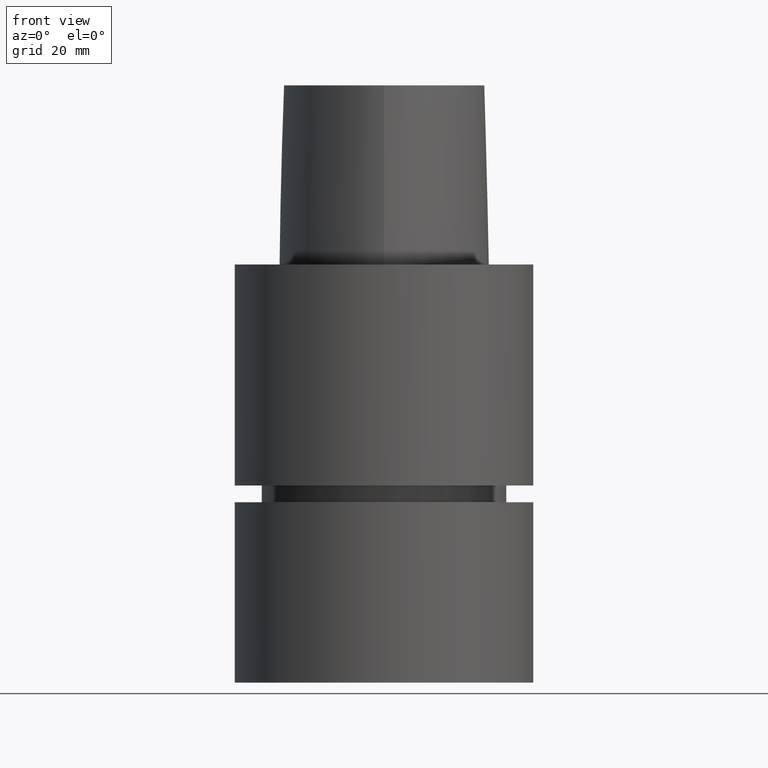
[diagram: clean part render]
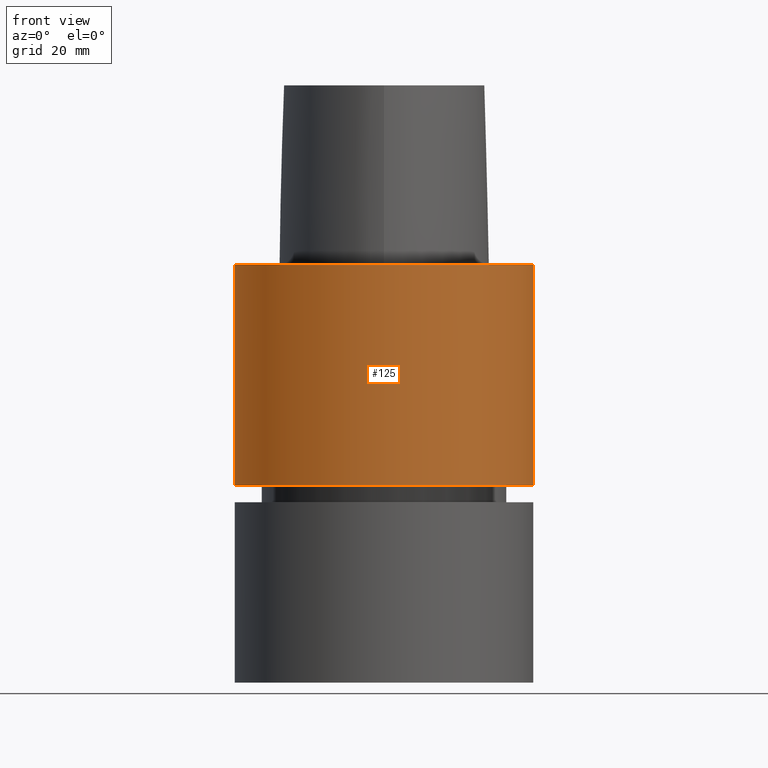
[diagram: same view with one face highlighted and labeled with its STEP entity id]
A machine part, front view. The second image highlights one B-rep face of the part: STEP entity #125.
In plain terms, the highlighted cylindrical surface (bore or boss wall) has radius 25 mm, axis along (0, 0, -1).
Its self-contained STEP definition (entity closure, byte-faithful):
#94=EDGE_CURVE('Unnamed[1]',#197,#197,#198,.T.);
#100=EDGE_CURVE('Unnamed[1]',#206,#206,#207,.T.);
#125=ADVANCED_FACE('Unnamed[1]',(#242,#243),#244,.T.);
#197=VERTEX_POINT('',#419);
#198=CIRCLE('',#420,25.0);
#206=VERTEX_POINT('',#431);
#207=CIRCLE('',#432,25.0);
#242=FACE_BOUND('',#907,.T.);
#243=FACE_BOUND('',#908,.T.);
#244=CYLINDRICAL_SURFACE('',#909,25.0);
#419=CARTESIAN_POINT('',(-3.08148791101958E-031,25.0,3.06161699786838E-015));
#420=AXIS2_PLACEMENT_3D('',#960,#961,#962);
#431=CARTESIAN_POINT('',(2.2656062267659E-015,25.0,-37.0001575694037));
#432=AXIS2_PLACEMENT_3D('',#969,#970,#971);
#907=EDGE_LOOP('',(#1009));
#908=EDGE_LOOP('',(#1010));
#909=AXIS2_PLACEMENT_3D('',#1011,#1012,#1013);
#960=CARTESIAN_POINT('',(0.0,0.0,0.0));
#961=DIRECTION('',(6.12323399573677E-017,1.22464679914735E-016,-1.0));
#962=DIRECTION('',(-1.23259516440783E-032,1.0,1.22464679914735E-016));
#969=CARTESIAN_POINT('',(2.2656062267659E-015,4.53121245353179E-015,-37.0001575694037));
#970=DIRECTION('',(6.12323399573677E-017,1.22464679914735E-016,-1.0));
#971=DIRECTION('',(-1.23259516440783E-032,1.0,1.22464679914735E-016));
#1009=ORIENTED_EDGE('',*,*,#100,.F.);
#1010=ORIENTED_EDGE('',*,*,#94,.T.);
#1011=CARTESIAN_POINT('',(1.13280311338295E-015,2.2656062267659E-015,-18.5000787847018));
#1012=DIRECTION('',(6.12323399573677E-017,1.22464679914735E-016,-1.0));
#1013=DIRECTION('',(-1.23259516440783E-032,1.0,1.22464679914735E-016));